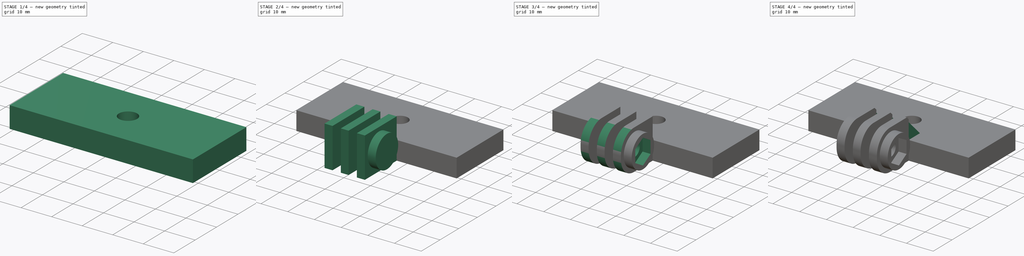
[diagram: build sequence overview — one tinted view per stage of 4, left to right]
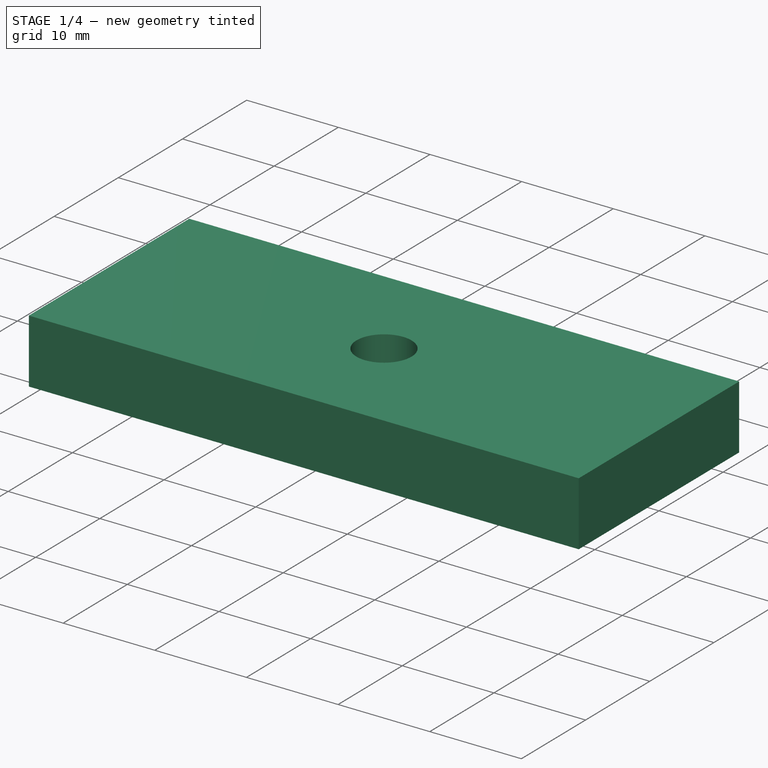
[diagram: stage 1 of 4 — iso view after this stage's code; geometry added in this stage tinted green]
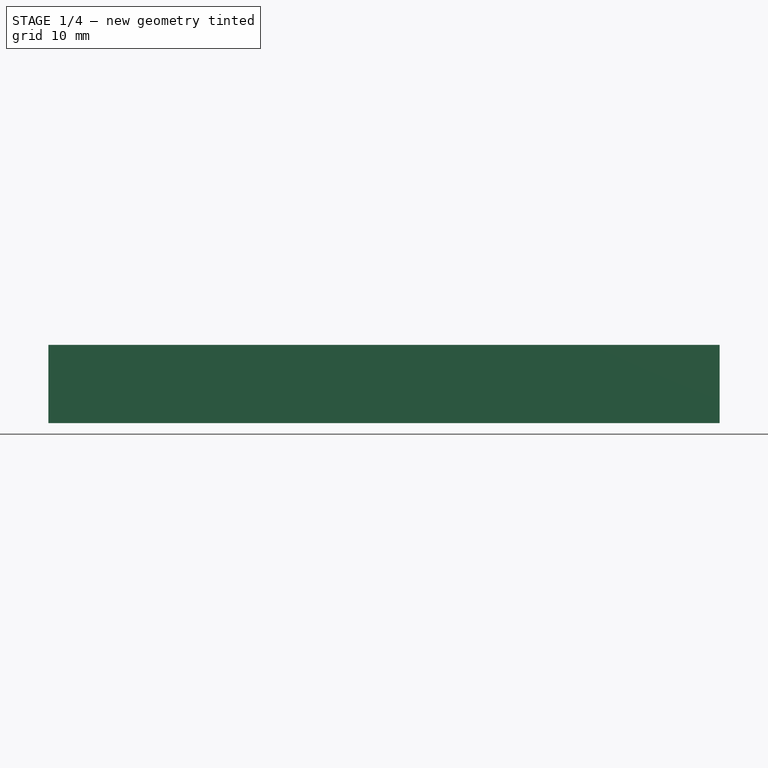
[diagram: stage 1 of 4 — front view after this stage's code; geometry added in this stage tinted green]
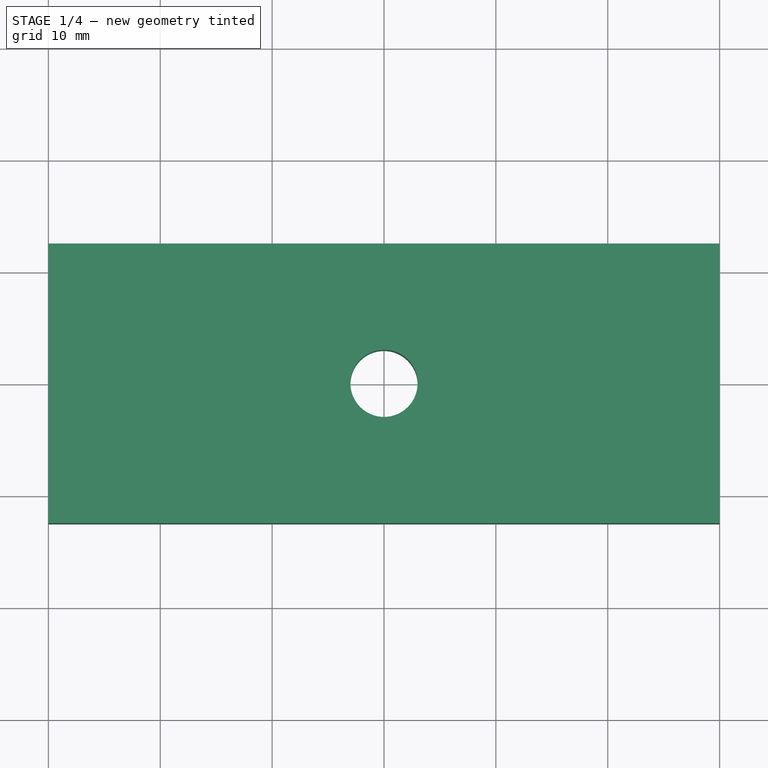
[diagram: stage 1 of 4 — top view after this stage's code; geometry added in this stage tinted green]
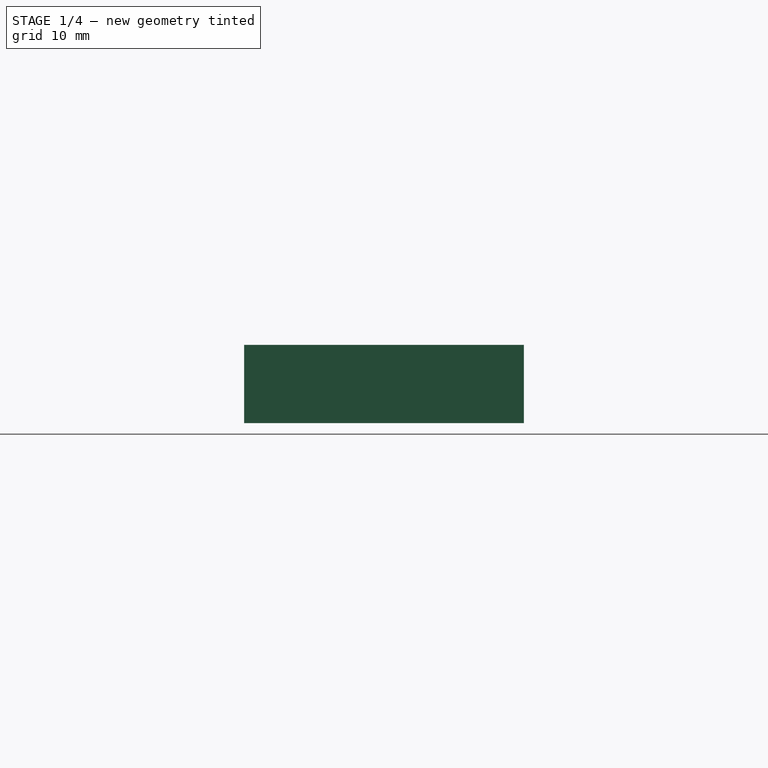
[diagram: stage 1 of 4 — right view after this stage's code; geometry added in this stage tinted green]
FCSTD DOCUMENT  (FreeCAD 0.17R13541 (Git))
Label: rs_case_mount_v1
License: All rights reserved
LicenseURL: http://en.wikipedia.org/wiki/All_rights_reserved
objects: Sketcher::SketchObject×6, PartDesign::Pad×3, PartDesign::Pocket×3, PartDesign::Chamfer×2, PartDesign::Fillet×1, PartDesign::Body×1
note: 22 computed .brp shape members not serialized (recipe doc carries the construction recipe); baked Part::Feature solids carry a one-line shape summary decoded from their .brp

FEATURE [Sketcher::SketchObject] Sketch
  MapMode = 5
  Support = -> [XY_Plane]
  sketch-geometry (4):
    g0: LineSegment StartX=-30 StartY=12.5 StartZ=0 EndX=30 EndY=12.5 EndZ=0
    g1: LineSegment StartX=30 StartY=12.5 StartZ=0 EndX=30 EndY=-12.5 EndZ=0
    g2: LineSegment StartX=30 StartY=-12.5 StartZ=0 EndX=-30 EndY=-12.5 EndZ=0
    g3: LineSegment StartX=-30 StartY=-12.5 StartZ=0 EndX=-30 EndY=12.5 EndZ=0
  constraints (10):
    c: Coincident(g0,g1)
    c: Coincident(g1,g2)
    c: Coincident(g2,g3)
    c: Coincident(g3,g0)
    c: Horizontal(g0)
    c: Vertical(g3)
    c: DistanceX(g2,g2) = 60
    c: DistanceY(g1,g1) = 25
    c: Symmetric(g0,g1,g-1)
    c: Symmetric(g1,g2,g-2)
FEATURE [PartDesign::Pad] Pad
  Length = 7
  Length2 = 100
  Profile = -> Sketch
  Type = 0
FEATURE [Sketcher::SketchObject] Sketch002
  MapMode = 5
  Placement = pos=(0,0,7) rot=(0,0,1;0rad)
  Support = -> [Pad]
  sketch-geometry (1):
    g0: Circle CenterX=0 CenterY=0 CenterZ=0 NormalX=0 NormalY=0 NormalZ=1 AngleXU=0 Radius=3
  constraints (2):
    c: Coincident(g0,g-1)
    c: Radius(g0) = 3
FEATURE [PartDesign::Pocket] Pocket
  BaseFeature = -> Pad
  Length = 7
  Length2 = 100
  Profile = -> Sketch002
  Type = 1
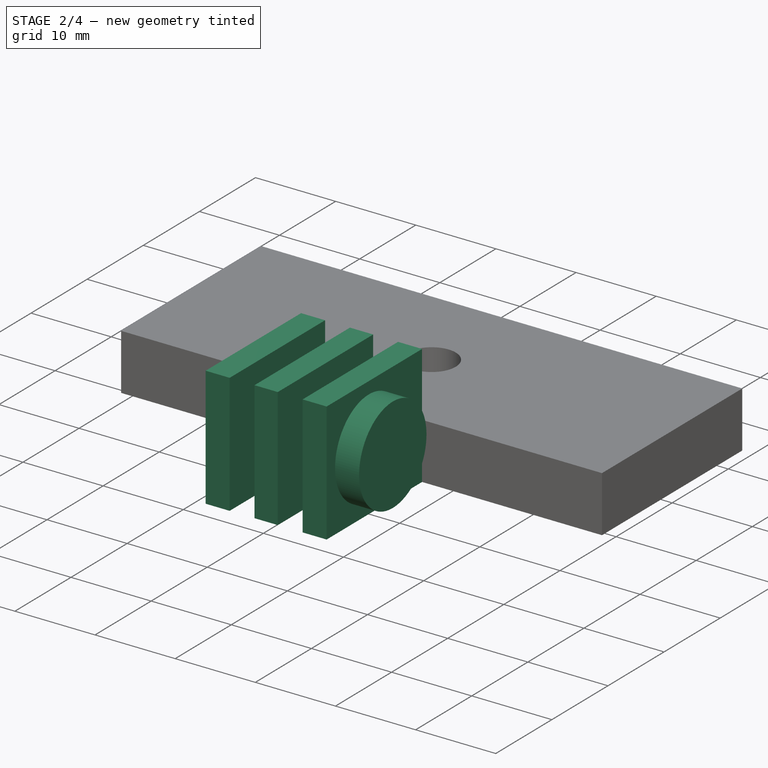
[diagram: stage 2 of 4 — iso view after this stage's code; geometry added in this stage tinted green]
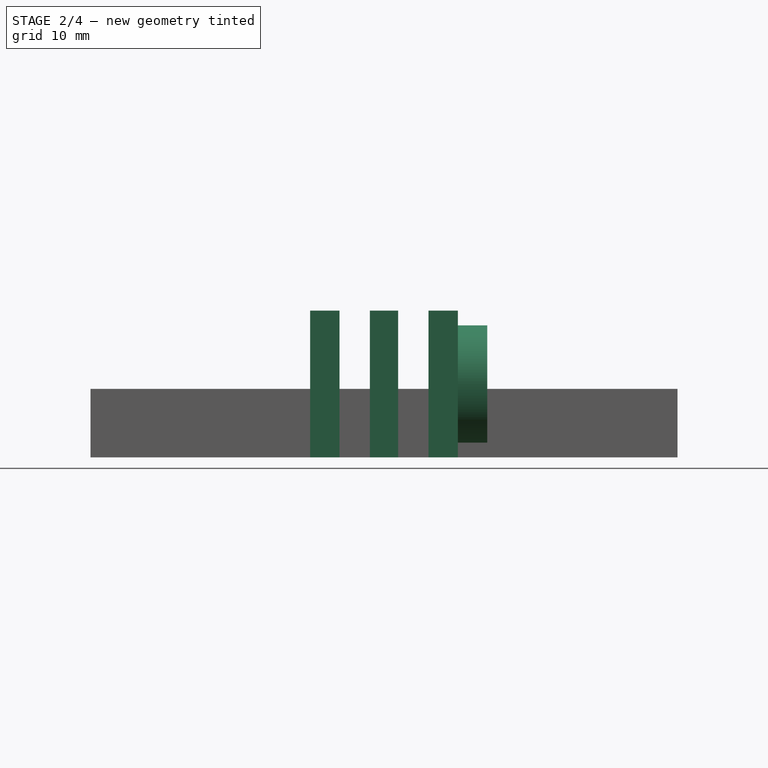
[diagram: stage 2 of 4 — front view after this stage's code; geometry added in this stage tinted green]
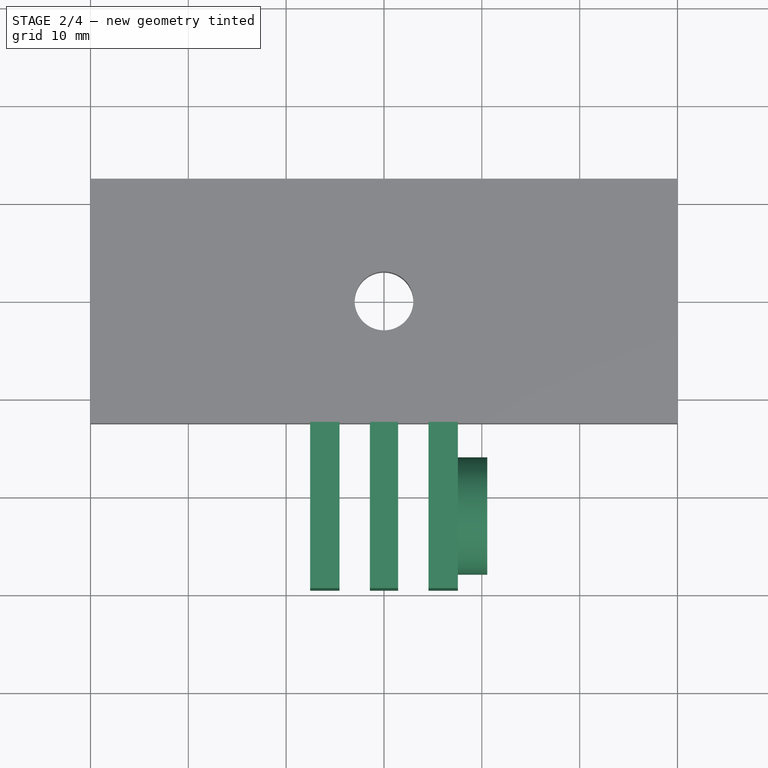
[diagram: stage 2 of 4 — top view after this stage's code; geometry added in this stage tinted green]
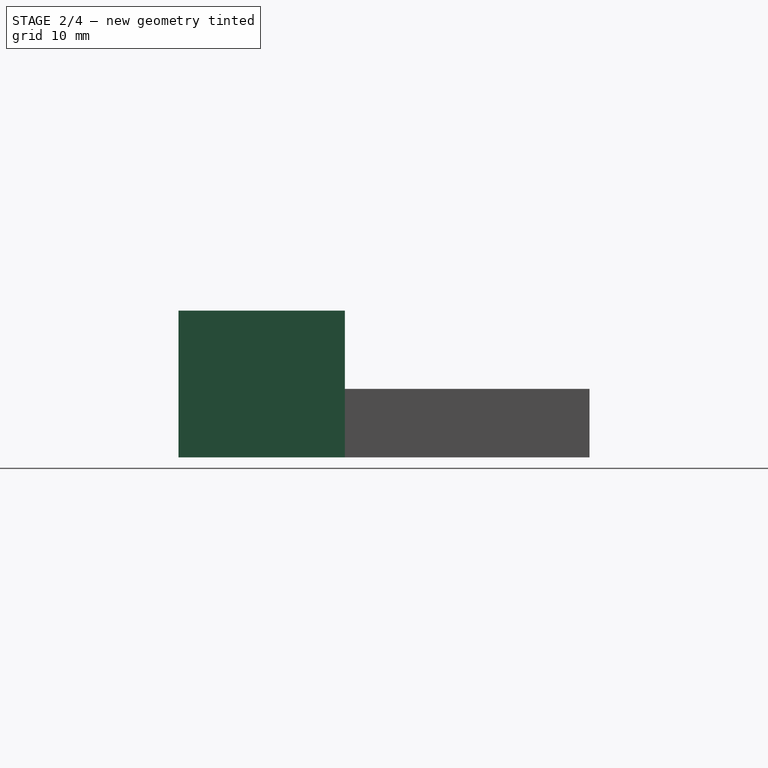
[diagram: stage 2 of 4 — right view after this stage's code; geometry added in this stage tinted green]
FEATURE [Sketcher::SketchObject] Sketch003
  MapMode = 5
  Placement = pos=(0,-12.5,0) rot=(1,0,0;1.5708rad)
  Support = -> [Pocket]
  sketch-geometry (12):
    g0: LineSegment StartX=-1.45 StartY=0 StartZ=0 EndX=1.45 EndY=0 EndZ=0
    g1: LineSegment StartX=1.45 StartY=0 StartZ=0 EndX=1.45 EndY=15 EndZ=0
    g2: LineSegment StartX=1.45 StartY=15 StartZ=0 EndX=-1.45 EndY=15 EndZ=0
    g3: LineSegment StartX=-1.45 StartY=15 StartZ=0 EndX=-1.45 EndY=0 EndZ=0
    g4: LineSegment StartX=4.55 StartY=0 StartZ=0 EndX=7.55 EndY=0 EndZ=0
    g5: LineSegment StartX=7.55 StartY=0 StartZ=0 EndX=7.55 EndY=15 EndZ=0
    g6: LineSegment StartX=7.55 StartY=15 StartZ=0 EndX=4.55 EndY=15 EndZ=0
    g7: LineSegment StartX=4.55 StartY=15 StartZ=0 EndX=4.55 EndY=0 EndZ=0
    g8: LineSegment StartX=-4.55 StartY=0 StartZ=0 EndX=-7.55 EndY=0 EndZ=0
    g9: LineSegment StartX=-7.55 StartY=0 StartZ=0 EndX=-7.55 EndY=15 EndZ=0
    g10: LineSegment StartX=-7.55 StartY=15 StartZ=0 EndX=-4.55 EndY=15 EndZ=0
    g11: LineSegment StartX=-4.55 StartY=15 StartZ=0 EndX=-4.55 EndY=0 EndZ=0
  constraints (35):
    c: Coincident(g0,g1)
    c: Coincident(g1,g2)
    c: Coincident(g2,g3)
    c: Coincident(g3,g0)
    c: Horizontal(g2)
    c: Vertical(g1)
    c: Vertical(g3)
    c: PointOnObject(g0,g-1)
    c: DistanceX(g2,g2) = 2.9
    c: DistanceY(g1,g1) = 15
    c: Symmetric(g0,g0,g-2)
    c: Coincident(g4,g5)
    c: Coincident(g5,g6)
    c: Coincident(g6,g7)
    c: Coincident(g7,g4)
    c: Horizontal(g4)
    c: Horizontal(g6)
    c: Vertical(g5)
    c: Vertical(g7)
    c: PointOnObject(g4,g-1)
    c: Coincident(g8,g9)
    c: Coincident(g9,g10)
    c: Coincident(g10,g11)
    c: Coincident(g11,g8)
    c: Horizontal(g8)
    c: Horizontal(g10)
    c: Vertical(g9)
    c: Vertical(g11)
    c: PointOnObject(g8,g-1)
    c: DistanceX(g10,g2) = 3.1
    c: DistanceX(g1,g6) = 3.1
    c: Equal(g5,g1)
    c: Equal(g1,g11)
    c: DistanceX(g6,g6) = 3
    c: DistanceX(g10,g10) = 3
FEATURE [PartDesign::Pad] Pad001
  BaseFeature = -> Pocket
  Length = 17
  Length2 = 100
  Profile = -> Sketch003
  Type = 0
FEATURE [Sketcher::SketchObject] Sketch005
  ExternalGeometry = -> [Pad001]
  MapMode = 5
  Placement = pos=(7.55,0,0) rot=(0.57735,0.57735,0.57735;2.0944rad)
  Support = -> [Pad001]
  sketch-geometry (1):
    g0: Circle CenterX=-22 CenterY=7.5 CenterZ=0 NormalX=0 NormalY=0 NormalZ=1 AngleXU=0 Radius=6
  constraints (3):
    c: Radius(g0) = 6
    c: DistanceY(g0,g-4) = 7.5
    c: DistanceX(g-4,g0) = 7.5
FEATURE [PartDesign::Pad] Pad002
  BaseFeature = -> Pad001
  Length = 3
  Length2 = 100
  Profile = -> Sketch005
  Type = 0
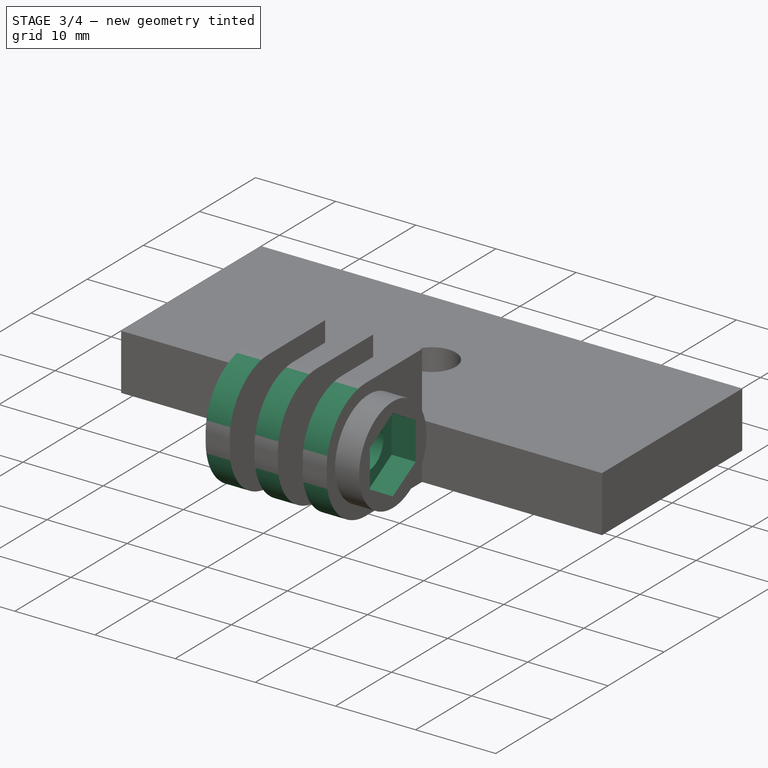
[diagram: stage 3 of 4 — iso view after this stage's code; geometry added in this stage tinted green]
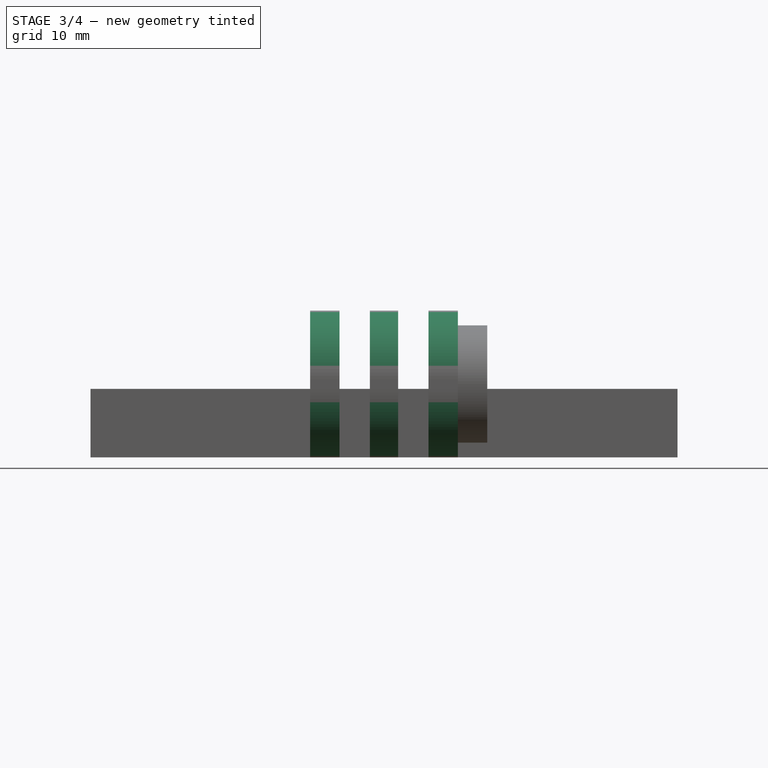
[diagram: stage 3 of 4 — front view after this stage's code; geometry added in this stage tinted green]
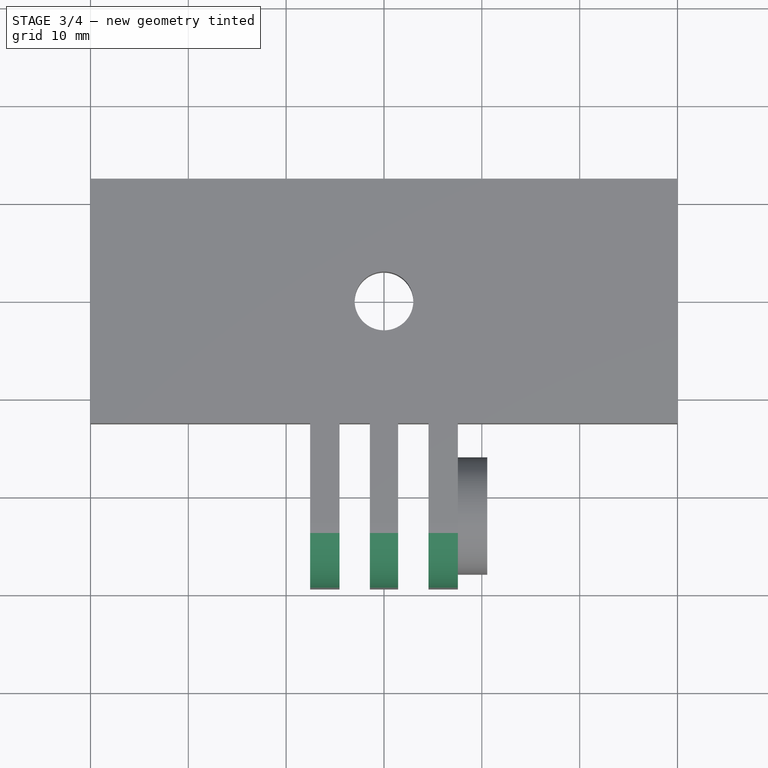
[diagram: stage 3 of 4 — top view after this stage's code; geometry added in this stage tinted green]
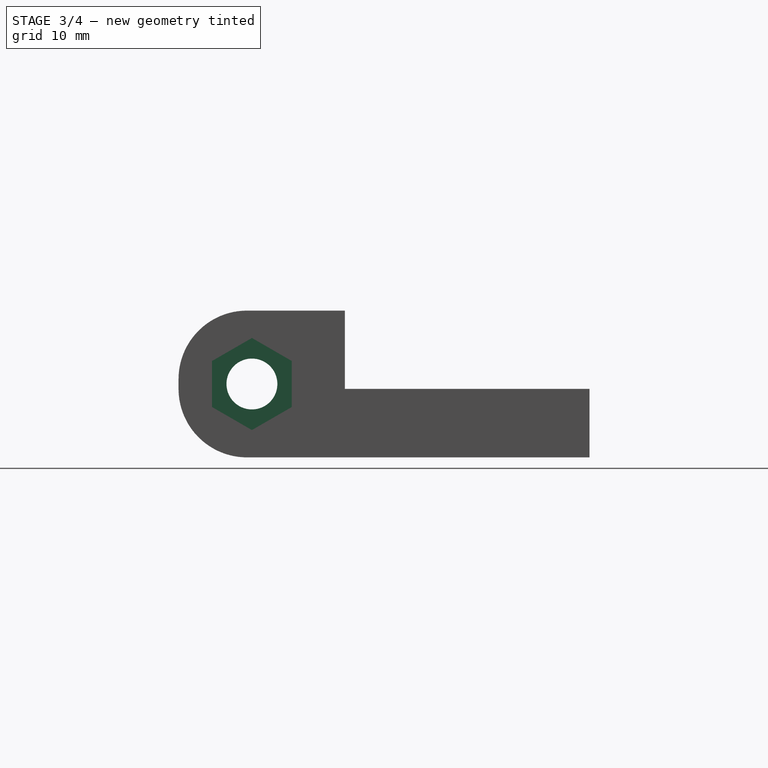
[diagram: stage 3 of 4 — right view after this stage's code; geometry added in this stage tinted green]
FEATURE [Sketcher::SketchObject] Sketch006
  ExternalGeometry = -> [Pad002]
  MapMode = 5
  Placement = pos=(10.55,0,0) rot=(0.57735,0.57735,0.57735;2.0944rad)
  Support = -> [Pad002]
  sketch-geometry (7):
    g0: LineSegment StartX=-17.925 StartY=9.8527 StartZ=0 EndX=-22 EndY=12.2054 EndZ=0
    g1: LineSegment StartX=-22 StartY=12.2054 StartZ=0 EndX=-26.075 EndY=9.8527 EndZ=0
    g2: LineSegment StartX=-26.075 StartY=9.8527 StartZ=0 EndX=-26.075 EndY=5.1473 EndZ=0
    g3: LineSegment StartX=-26.075 StartY=5.1473 StartZ=0 EndX=-22 EndY=2.7946 EndZ=0
    g4: LineSegment StartX=-22 StartY=2.7946 StartZ=0 EndX=-17.925 EndY=5.1473 EndZ=0
    g5: LineSegment StartX=-17.925 StartY=5.1473 StartZ=0 EndX=-17.925 EndY=9.8527 EndZ=0
    g6: Circle [constr] CenterX=-22 CenterY=7.5 CenterZ=0 NormalX=0 NormalY=0 NormalZ=1 AngleXU=0 Radius=4.7054
  constraints (16):
    c: Coincident(g0,g1)
    c: Coincident(g1,g2)
    c: Coincident(g2,g3)
    c: Coincident(g3,g4)
    c: Coincident(g4,g5)
    c: Coincident(g5,g0)
    c: Equal(g0, g1-g5) x5
    c: PointOnObject(g0,g6)
    c: PointOnObject(g1,g6)
    c: PointOnObject(g2,g6)
    c: PointOnObject(g3,g6)
    c: PointOnObject(g4,g6)
    c: PointOnObject(g5,g6)
    c: DistanceX(g6,g0) = 0
    c: DistanceX(g1,g0) = 8.15
    c: Coincident(g-3,g6)
FEATURE [PartDesign::Pocket] Pocket001
  BaseFeature = -> Pad002
  Length = 3
  Length2 = 100
  Profile = -> Sketch006
  Type = 0
FEATURE [Sketcher::SketchObject] Sketch007
  ExternalGeometry = -> [Pocket001]
  MapMode = 5
  Placement = pos=(7.55,0,0) rot=(0.57735,0.57735,0.57735;2.0944rad)
  Support = -> [Pocket001]
  sketch-geometry (1):
    g0: Circle CenterX=-22 CenterY=7.5 CenterZ=0 NormalX=0 NormalY=0 NormalZ=1 AngleXU=0 Radius=2.6
  constraints (2):
    c: Radius(g0) = 2.6
    c: Coincident(g0,g-3)
FEATURE [PartDesign::Pocket] Pocket002
  BaseFeature = -> Pocket001
  Length = 5
  Length2 = 100
  Profile = -> Sketch007
  Type = 1
FEATURE [PartDesign::Fillet] Fillet
  Base = -> Pocket002 [Edge72,Edge61,Edge65,Edge33,Edge40,Edge30]
  BaseFeature = -> Pocket002
  Radius = 7
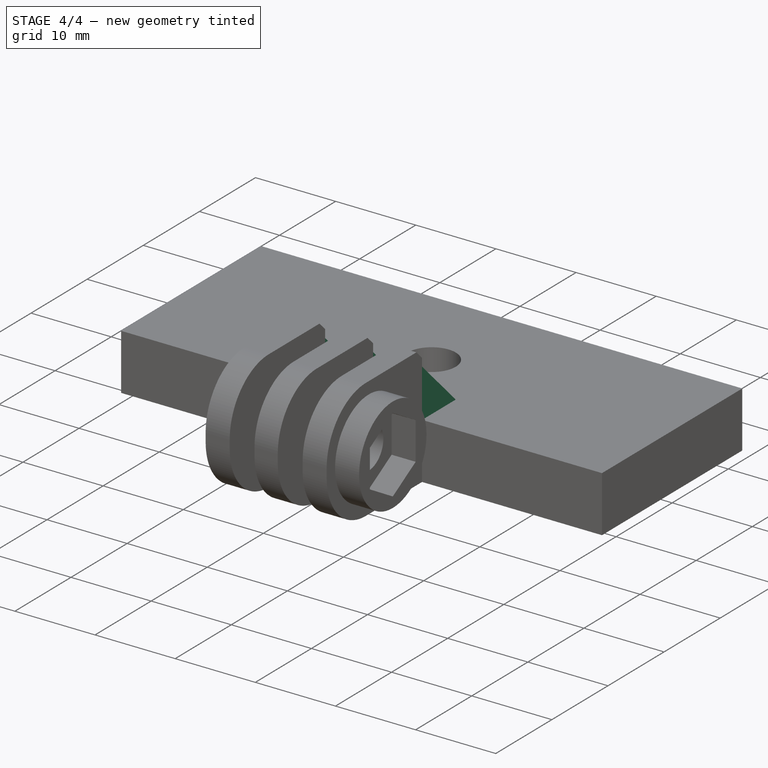
[diagram: stage 4 of 4 — iso view after this stage's code; geometry added in this stage tinted green]
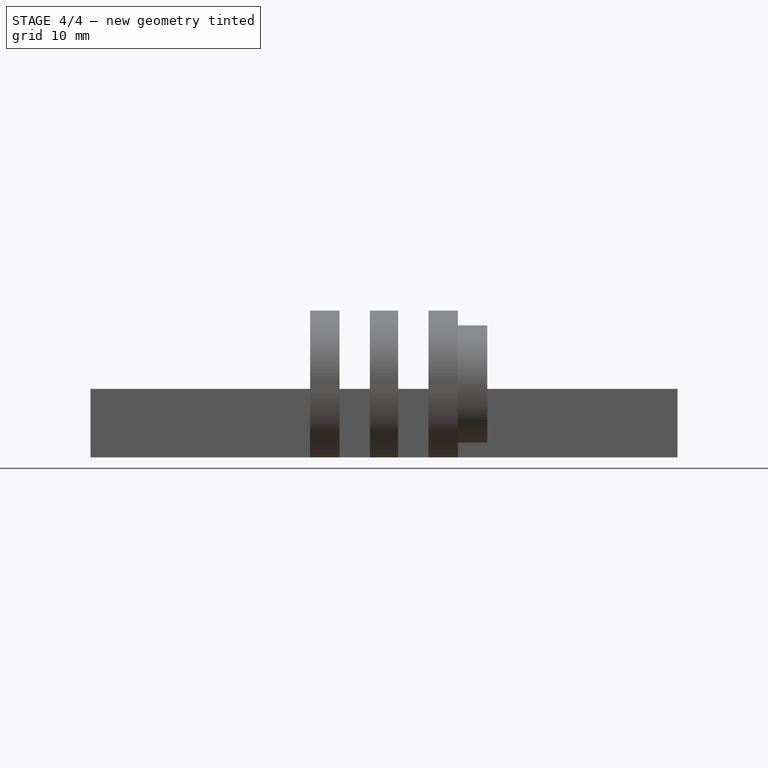
[diagram: stage 4 of 4 — front view after this stage's code; geometry added in this stage tinted green]
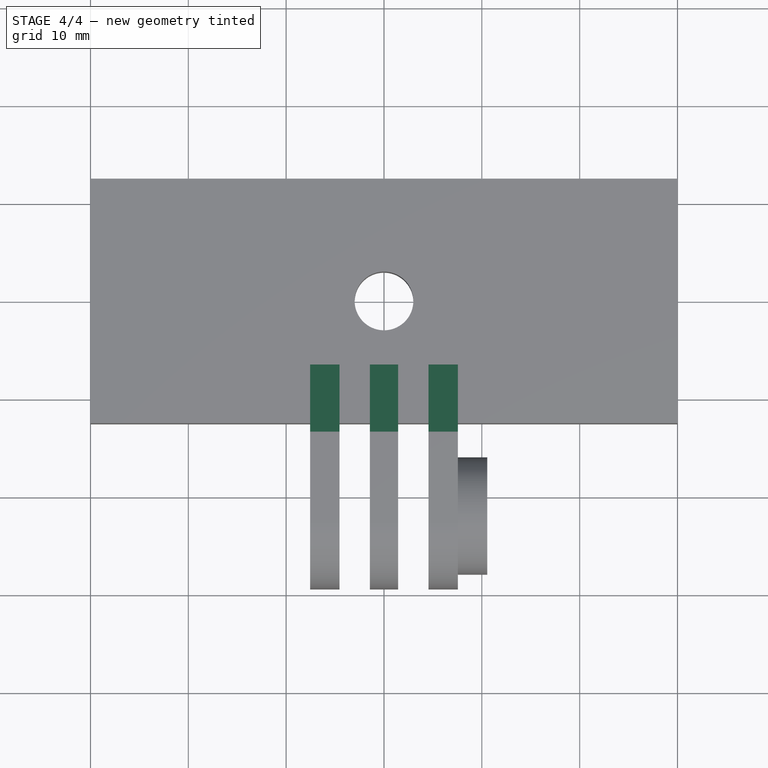
[diagram: stage 4 of 4 — top view after this stage's code; geometry added in this stage tinted green]
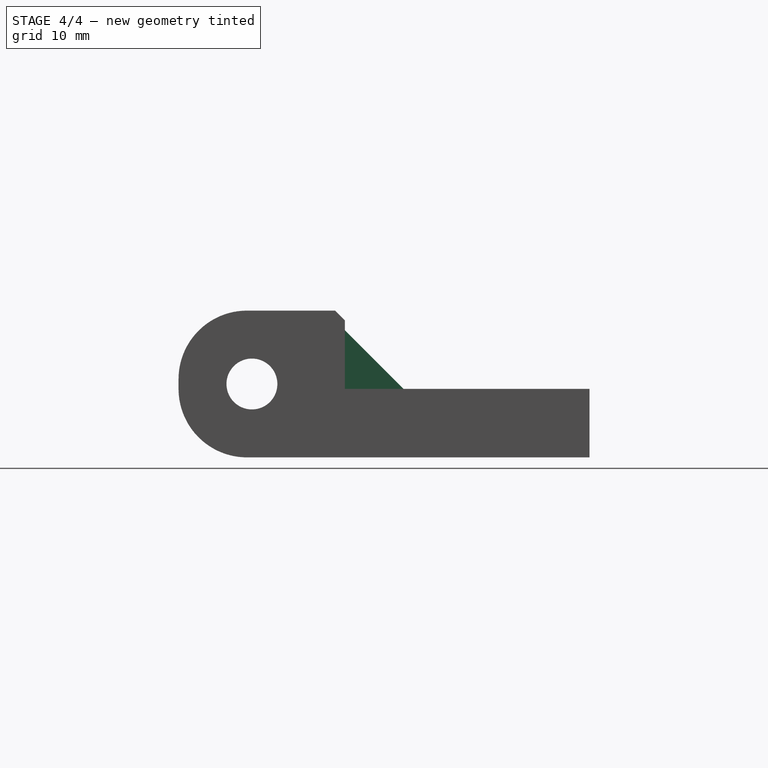
[diagram: stage 4 of 4 — right view after this stage's code; geometry added in this stage tinted green]
FEATURE [PartDesign::Chamfer] Chamfer
  Base = -> Fillet [Edge58,Edge59,Edge33]
  BaseFeature = -> Fillet
  Size = 6
FEATURE [PartDesign::Chamfer] Chamfer001
  Base = -> Chamfer [Edge97,Edge106,Edge12]
  BaseFeature = -> Chamfer
  Size = 1
FEATURE [PartDesign::Body] Body
  Group = -> [Sketch,Pad,Sketch002,Pocket,Sketch003,Pad001,Sketch005,Sketch006,Sketch007,Pad002,Pocket001,Pocket002,Fillet,Chamfer,Chamfer001]
  Origin = -> Origin
  Tip = -> Chamfer001
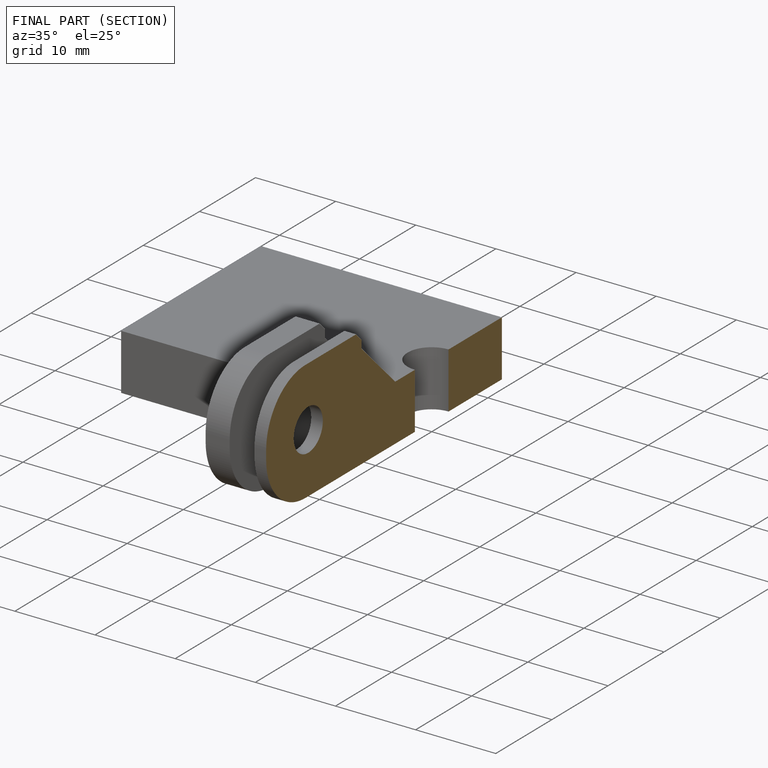
[diagram: finished part — half-section view (interior)]
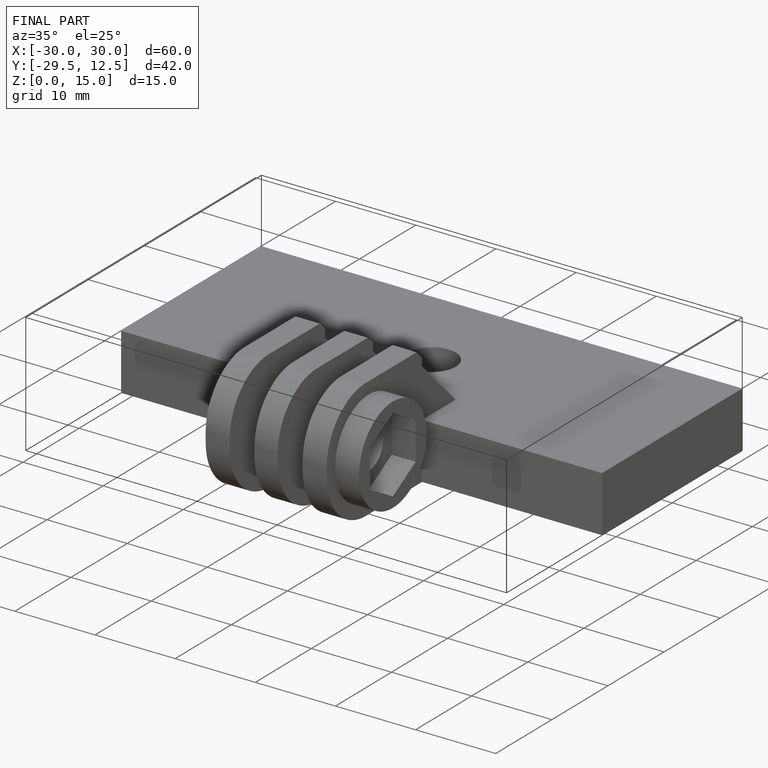
[diagram: finished part — iso view with bounding-box wireframe]
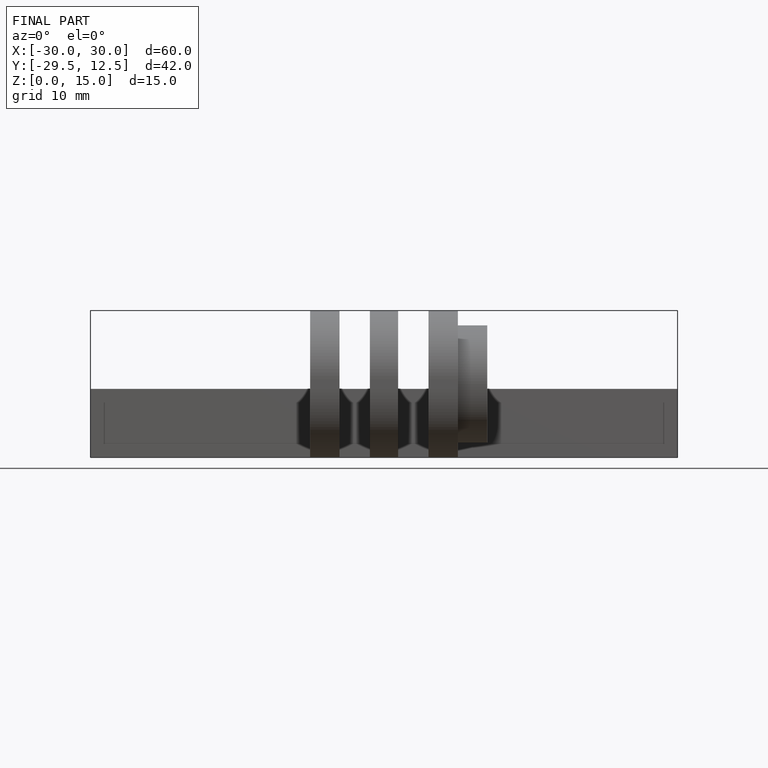
[diagram: finished part — front view with bounding-box wireframe]
